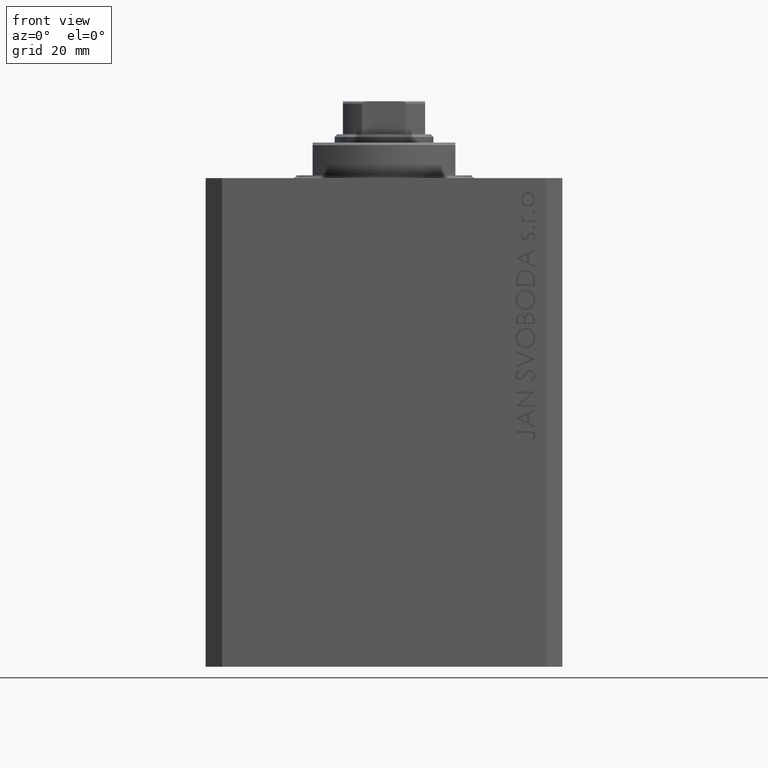
[diagram: clean part render]
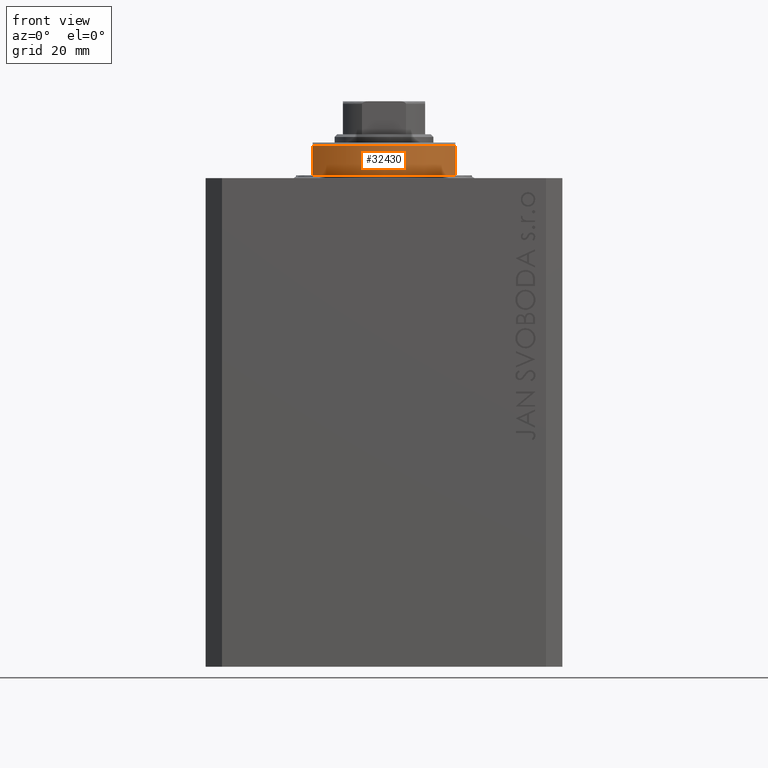
[diagram: same view with one face highlighted and labeled with its STEP entity id]
A machine part, front view. The second image highlights one B-rep face of the part: STEP entity #32430.
In plain terms, the highlighted cylindrical surface (partial cylindrical patch) has radius 16 mm, axis along (0, 0, -1).
Its self-contained STEP definition (entity closure, byte-faithful):
#521 = DIRECTION ( 'NONE',  ( -1.000000000000000000, 0.000000000000000000, 0.000000000000000000 ) ) ;
#1155 = CARTESIAN_POINT ( 'NONE',  ( 0.000000000000000000, 0.000000000000000000, -0.4999999999999995559 ) ) ;
#1838 = CARTESIAN_POINT ( 'NONE',  ( 13.00000000000000000, -9.327379053088815652, -6.000000000000023981 ) ) ;
#2217 = DIRECTION ( 'NONE',  ( -0.000000000000000000, -0.000000000000000000, 1.000000000000000000 ) ) ;
#2827 = ORIENTED_EDGE ( 'NONE', *, *, #9535, .T. ) ;
#3855 = DIRECTION ( 'NONE',  ( 0.000000000000000000, 0.000000000000000000, 1.000000000000000000 ) ) ;
#4763 = VERTEX_POINT ( 'NONE', #37554 ) ;
#7818 = ORIENTED_EDGE ( 'NONE', *, *, #19787, .T. ) ;
#9535 = EDGE_CURVE ( 'NONE', #4763, #37230, #43392, .T. ) ;
#9858 = CARTESIAN_POINT ( 'NONE',  ( 0.000000000000000000, 0.000000000000000000, -6.500000000000000000 ) ) ;
#12193 = CARTESIAN_POINT ( 'NONE',  ( 0.000000000000000000, 0.000000000000000000, -6.000000000000023981 ) ) ;
#16787 = FACE_OUTER_BOUND ( 'NONE', #24610, .T. ) ;
#18136 = LINE ( 'NONE', #25757, #24143 ) ;
#18335 = DIRECTION ( 'NONE',  ( 0.000000000000000000, 0.000000000000000000, -1.000000000000000000 ) ) ;
#18857 = DIRECTION ( 'NONE',  ( -0.000000000000000000, -0.000000000000000000, -1.000000000000000000 ) ) ;
#19005 = EDGE_CURVE ( 'NONE', #23375, #37879, #18136, .T. ) ;
#19529 = EDGE_CURVE ( 'NONE', #37230, #37879, #22675, .T. ) ;
#19787 = EDGE_CURVE ( 'NONE', #23375, #4763, #25716, .T. ) ;
#22675 = CIRCLE ( 'NONE', #34837, 16.00000000000000000 ) ;
#23375 = VERTEX_POINT ( 'NONE', #25046 ) ;
#24143 = VECTOR ( 'NONE', #47237, 1000.000000000000000 ) ;
#24415 = DIRECTION ( 'NONE',  ( 1.000000000000000000, 0.000000000000000000, 0.000000000000000000 ) ) ;
#24610 = EDGE_LOOP ( 'NONE', ( #28378, #7818, #2827, #41862 ) ) ;
#25046 = CARTESIAN_POINT ( 'NONE',  ( 13.00000000000000000, -9.327379053088815652, -0.4999999999999995559 ) ) ;
#25716 = CIRCLE ( 'NONE', #40189, 16.00000000000000000 ) ;
#25757 = CARTESIAN_POINT ( 'NONE',  ( 13.00000000000000000, -9.327379053088813876, -6.500000000000000000 ) ) ;
#28378 = ORIENTED_EDGE ( 'NONE', *, *, #19005, .F. ) ;
#32430 = ADVANCED_FACE ( 'NONE', ( #16787 ), #42558, .T. ) ;
#32880 = CARTESIAN_POINT ( 'NONE',  ( -13.00000000000000000, -9.327379053088813876, -6.500000000000000000 ) ) ;
#33398 = DIRECTION ( 'NONE',  ( 1.000000000000000000, 0.000000000000000000, 0.000000000000000000 ) ) ;
#34837 = AXIS2_PLACEMENT_3D ( 'NONE', #12193, #3855, #521 ) ;
#37230 = VERTEX_POINT ( 'NONE', #45648 ) ;
#37554 = CARTESIAN_POINT ( 'NONE',  ( -13.00000000000000000, -9.327379053088815652, -0.4999999999999995559 ) ) ;
#37879 = VERTEX_POINT ( 'NONE', #1838 ) ;
#39234 = AXIS2_PLACEMENT_3D ( 'NONE', #9858, #2217, #24415 ) ;
#39268 = VECTOR ( 'NONE', #18335, 1000.000000000000000 ) ;
#40189 = AXIS2_PLACEMENT_3D ( 'NONE', #1155, #18857, #33398 ) ;
#41862 = ORIENTED_EDGE ( 'NONE', *, *, #19529, .T. ) ;
#42558 = CYLINDRICAL_SURFACE ( 'NONE', #39234, 16.00000000000000000 ) ;
#43392 = LINE ( 'NONE', #32880, #39268 ) ;
#45648 = CARTESIAN_POINT ( 'NONE',  ( -13.00000000000000000, -9.327379053088815652, -6.000000000000023981 ) ) ;
#47237 = DIRECTION ( 'NONE',  ( 0.000000000000000000, 0.000000000000000000, -1.000000000000000000 ) ) ;